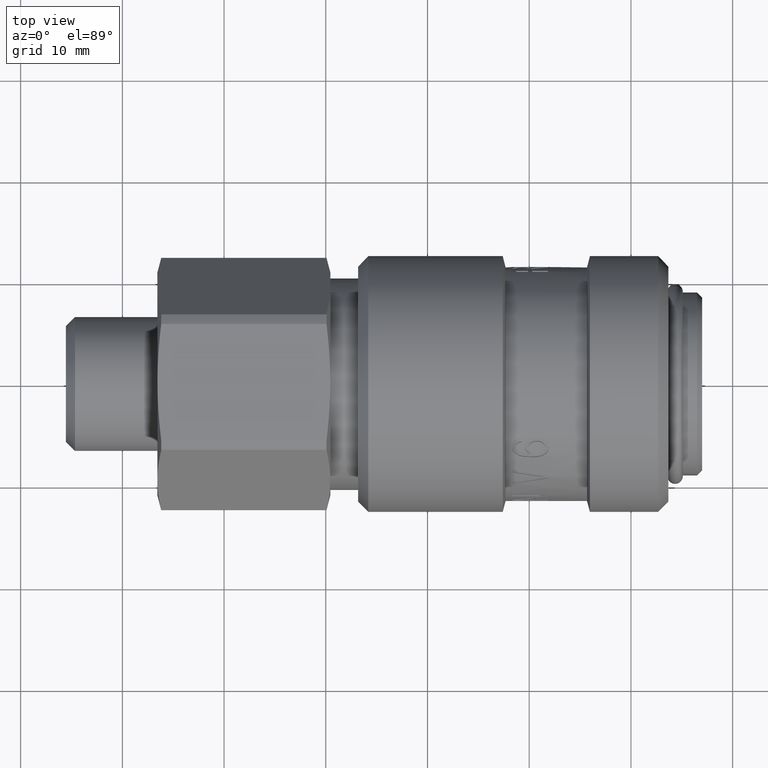
[diagram: clean part render]
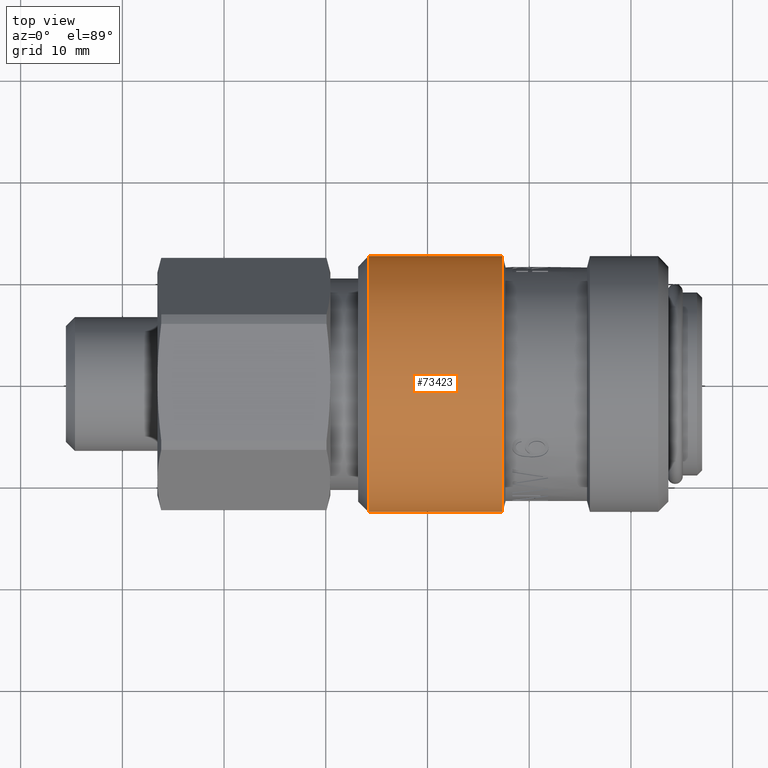
[diagram: same view with one face highlighted and labeled with its STEP entity id]
A machine part, top view. The second image highlights one B-rep face of the part: STEP entity #73423.
In plain terms, the highlighted cylindrical surface (bore or boss wall) has radius 12.575 mm, axis along (1, 0, 0).
Its self-contained STEP definition (entity closure, byte-faithful):
#73392=CARTESIAN_POINT('',(4.180999999999998,-12.575000000000001,1.539993E-015));
#73393=VERTEX_POINT('',#73392);
#73394=CARTESIAN_POINT('',(4.180999999999995,5.252872E-016,0.0));
#73395=DIRECTION('',(-1.0,0.0,0.0));
#73396=DIRECTION('',(0.0,1.0,0.0));
#73397=AXIS2_PLACEMENT_3D('',#73394,#73395,#73396);
#73398=CIRCLE('',#73397,12.575000000000001);
#73399=EDGE_CURVE('',#73393,#73393,#73398,.T.);
#73404=CARTESIAN_POINT('',(10.286977309068268,1.354034E-015,0.0));
#73405=DIRECTION('',(1.0,1.357271E-016,0.0));
#73406=DIRECTION('',(0.0,-1.0,0.0));
#73407=AXIS2_PLACEMENT_3D('',#73404,#73405,#73406);
#73408=CYLINDRICAL_SURFACE('',#73407,12.575000000000001);
#73409=CARTESIAN_POINT('',(17.392954618136539,-12.574999999999996,0.0));
#73410=VERTEX_POINT('',#73409);
#73411=CARTESIAN_POINT('',(17.392954618136539,2.318507E-015,0.0));
#73412=DIRECTION('',(1.0,0.0,0.0));
#73413=DIRECTION('',(0.0,-1.0,0.0));
#73414=AXIS2_PLACEMENT_3D('',#73411,#73412,#73413);
#73415=CIRCLE('',#73414,12.574999999999999);
#73416=EDGE_CURVE('',#73410,#73410,#73415,.T.);
#73417=ORIENTED_EDGE('',*,*,#73416,.F.);
#73418=EDGE_LOOP('',(#73417));
#73419=FACE_OUTER_BOUND('',#73418,.T.);
#73420=ORIENTED_EDGE('',*,*,#73399,.F.);
#73421=EDGE_LOOP('',(#73420));
#73422=FACE_BOUND('',#73421,.T.);
#73423=ADVANCED_FACE('',(#73419,#73422),#73408,.T.);